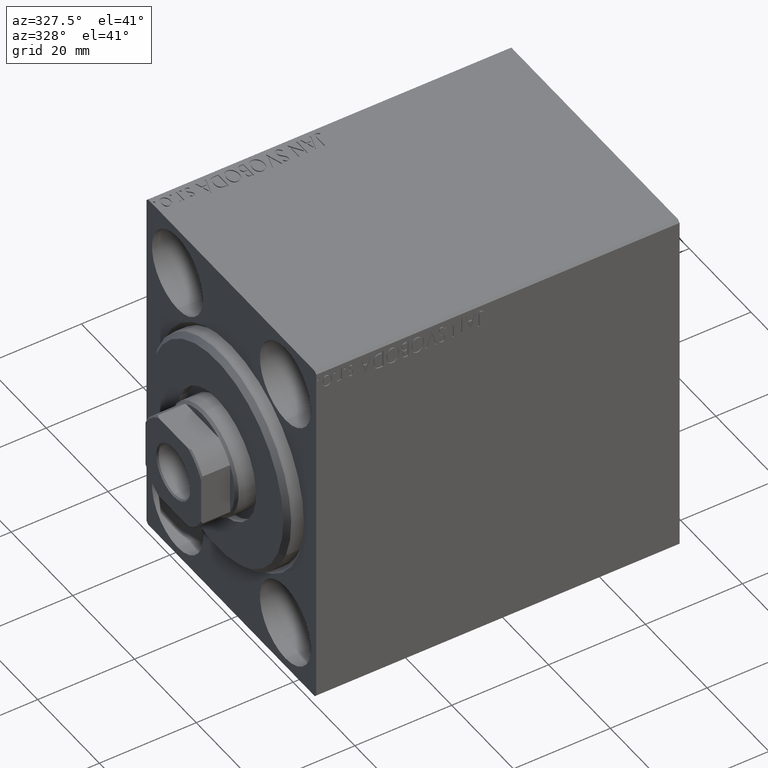
[diagram: clean part render]
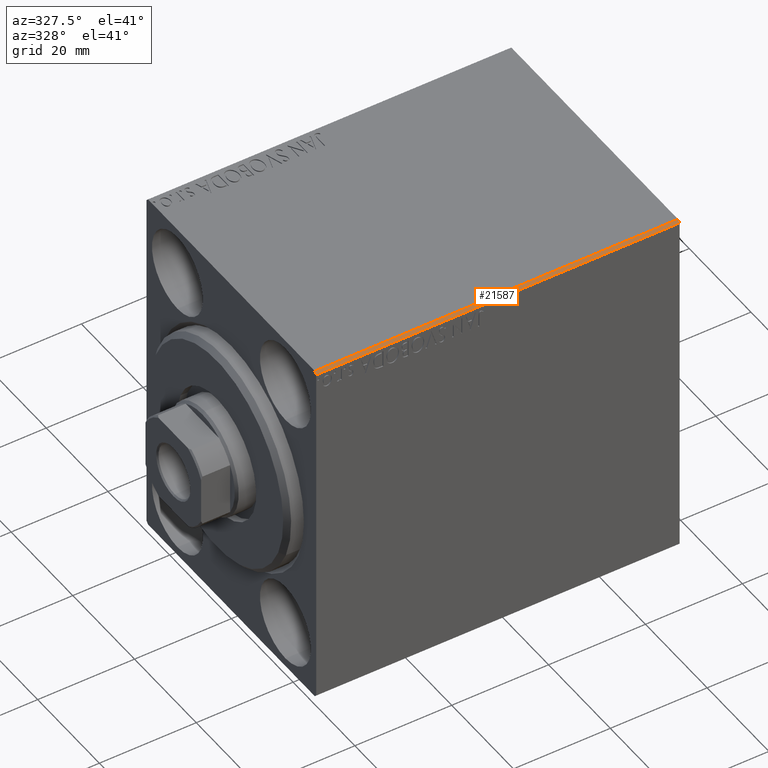
[diagram: same view with one face highlighted and labeled with its STEP entity id]
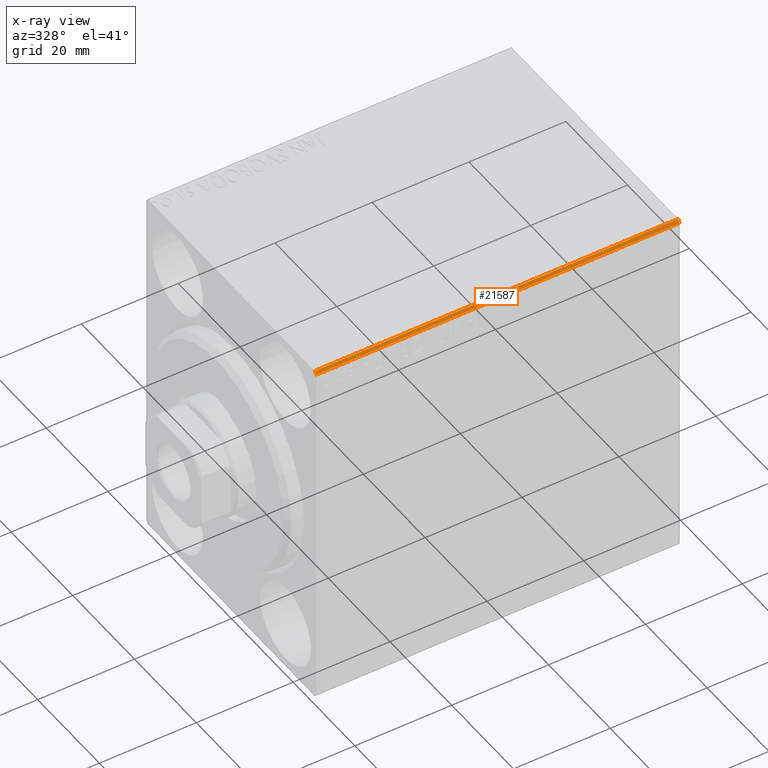
[diagram: x-ray of the same camera — body ghosted, the highlighted face saturated]
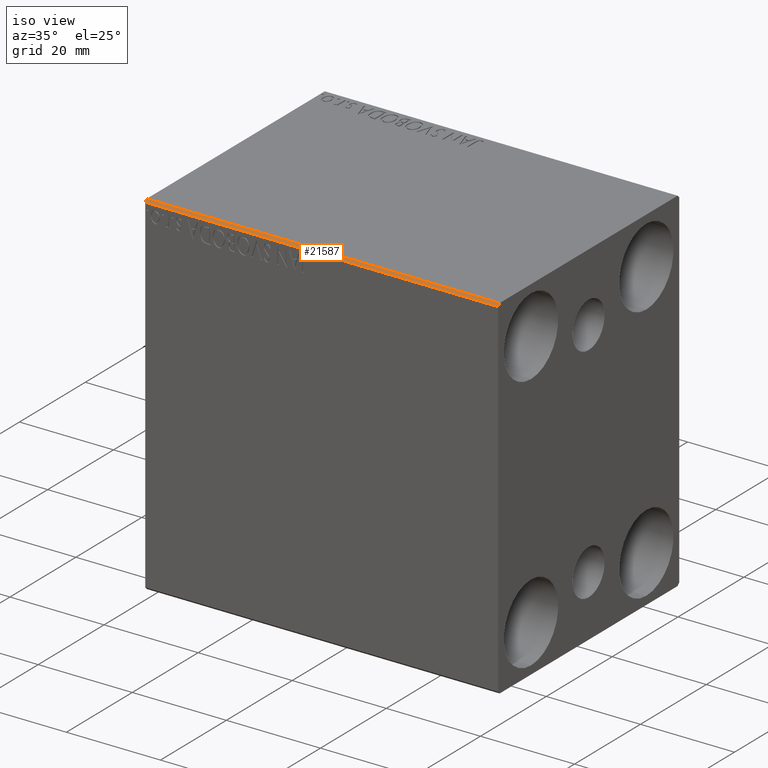
[diagram: same view with one face highlighted and labeled with its STEP entity id]
A machine part, auxiliary view. The second image highlights one B-rep face of the part: STEP entity #21587.
The next image is the same camera in x-ray: the body ghosted, the highlighted face saturated — about 0% of this face is hidden behind the body in this view.
A second angle (iso view) of the same face is appended — the face is thin or edge-on in the first view.
In plain terms, the highlighted planar face has unit normal (0, 0.7071, -0.7071).
Its self-contained STEP definition (entity closure, byte-faithful):
#1737 = ORIENTED_EDGE ( 'NONE', *, *, #4729, .F. ) ;
#4729 = EDGE_CURVE ( 'NONE', #29543, #27372, #21513, .T. ) ;
#4772 = DIRECTION ( 'NONE',  ( -1.000000000000000000, 0.000000000000000000, 0.000000000000000000 ) ) ;
#6477 = CARTESIAN_POINT ( 'NONE',  ( 0.000000000000000000, -27.50000000000000355, 37.00000000000001421 ) ) ;
#8282 = LINE ( 'NONE', #35168, #11740 ) ;
#8926 = CARTESIAN_POINT ( 'NONE',  ( 0.000000000000000000, -27.50000000000000355, 37.00000000000001421 ) ) ;
#11740 = VECTOR ( 'NONE', #18422, 1000.000000000000000 ) ;
#12894 = VERTEX_POINT ( 'NONE', #22505 ) ;
#13901 = DIRECTION ( 'NONE',  ( 0.000000000000000000, -0.7071067811865474617, -0.7071067811865474617 ) ) ;
#15365 = VECTOR ( 'NONE', #4772, 1000.000000000000000 ) ;
#15858 = DIRECTION ( 'NONE',  ( -1.000000000000000000, 0.000000000000000000, 0.000000000000000000 ) ) ;
#16080 = FACE_OUTER_BOUND ( 'NONE', #27381, .T. ) ;
#16300 = DIRECTION ( 'NONE',  ( 0.000000000000000000, 0.7071067811865475727, -0.7071067811865475727 ) ) ;
#17567 = ORIENTED_EDGE ( 'NONE', *, *, #27892, .F. ) ;
#18422 = DIRECTION ( 'NONE',  ( 1.000000000000000000, 0.000000000000000000, 0.000000000000000000 ) ) ;
#20297 = CARTESIAN_POINT ( 'NONE',  ( 75.00000000000000000, -32.25000000000000711, 32.25000000000000711 ) ) ;
#21513 = LINE ( 'NONE', #34964, #15365 ) ;
#21587 = ADVANCED_FACE ( 'NONE', ( #16080 ), #26636, .F. ) ;
#22505 = CARTESIAN_POINT ( 'NONE',  ( 75.00000000000000000, -27.00000000000001776, 37.50000000000000000 ) ) ;
#24462 = LINE ( 'NONE', #20297, #34821 ) ;
#26636 = PLANE ( 'NONE',  #26833 ) ;
#26833 = AXIS2_PLACEMENT_3D ( 'NONE', #43164, #16300, #15858 ) ;
#27372 = VERTEX_POINT ( 'NONE', #6477 ) ;
#27381 = EDGE_LOOP ( 'NONE', ( #31870, #37615, #17567, #1737 ) ) ;
#27892 = EDGE_CURVE ( 'NONE', #27372, #37921, #35799, .T. ) ;
#29543 = VERTEX_POINT ( 'NONE', #41989 ) ;
#31204 = VECTOR ( 'NONE', #42623, 1000.000000000000114 ) ;
#31870 = ORIENTED_EDGE ( 'NONE', *, *, #36000, .F. ) ;
#34821 = VECTOR ( 'NONE', #13901, 1000.000000000000114 ) ;
#34964 = CARTESIAN_POINT ( 'NONE',  ( 75.00000000000000000, -27.50000000000000355, 37.00000000000001421 ) ) ;
#35168 = CARTESIAN_POINT ( 'NONE',  ( 75.00000000000000000, -27.00000000000001776, 37.50000000000000000 ) ) ;
#35799 = LINE ( 'NONE', #8926, #31204 ) ;
#36000 = EDGE_CURVE ( 'NONE', #12894, #29543, #24462, .T. ) ;
#37615 = ORIENTED_EDGE ( 'NONE', *, *, #40575, .F. ) ;
#37703 = CARTESIAN_POINT ( 'NONE',  ( 0.000000000000000000, -27.00000000000001776, 37.50000000000000000 ) ) ;
#37921 = VERTEX_POINT ( 'NONE', #37703 ) ;
#40575 = EDGE_CURVE ( 'NONE', #37921, #12894, #8282, .T. ) ;
#41989 = CARTESIAN_POINT ( 'NONE',  ( 75.00000000000000000, -27.50000000000000355, 37.00000000000001421 ) ) ;
#42623 = DIRECTION ( 'NONE',  ( -0.000000000000000000, 0.7071067811865474617, 0.7071067811865474617 ) ) ;
#43164 = CARTESIAN_POINT ( 'NONE',  ( 75.00000000000000000, -27.50000000000000355, 37.00000000000001421 ) ) ;